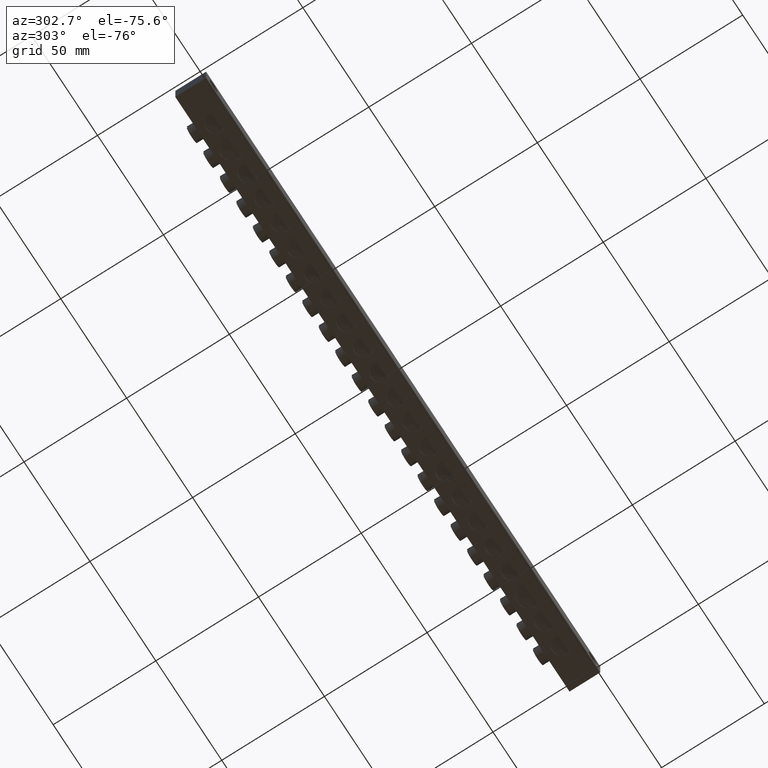
[diagram: clean part render]
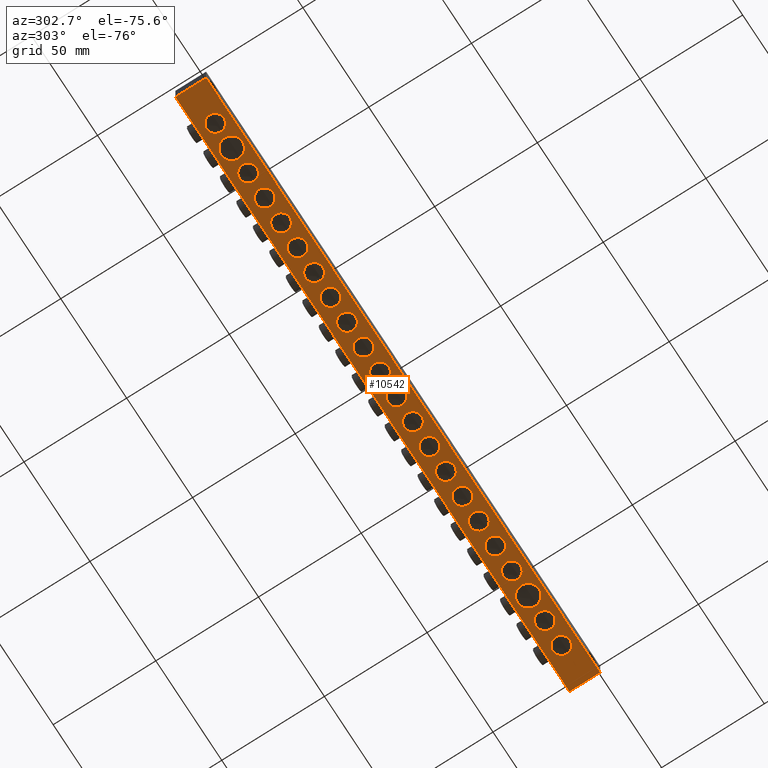
[diagram: same view with one face highlighted and labeled with its STEP entity id]
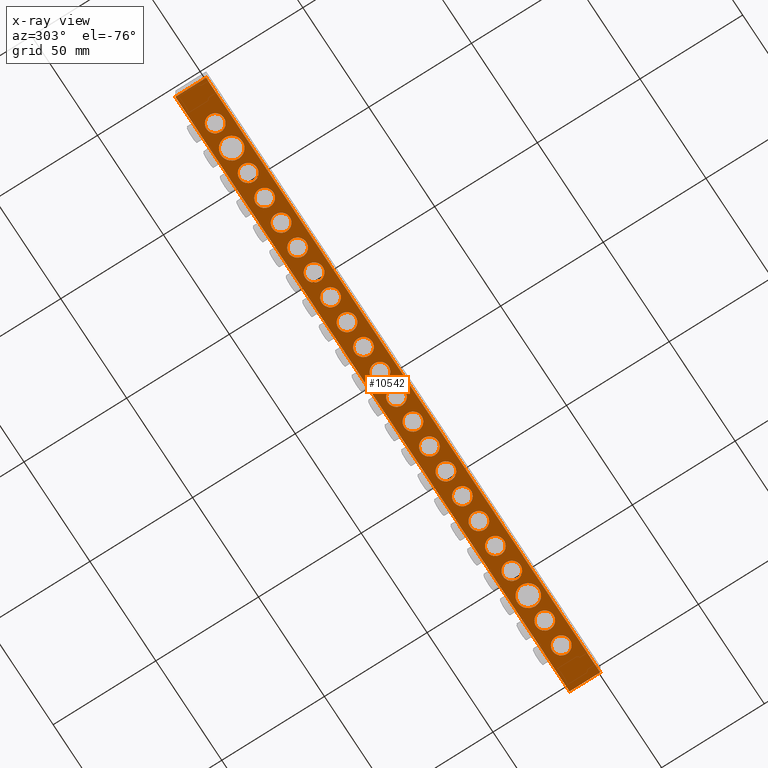
[diagram: x-ray of the same camera — body ghosted, the highlighted face saturated]
A machine part, auxiliary view. The second image highlights one B-rep face of the part: STEP entity #10542.
The next image is the same camera in x-ray: the body ghosted, the highlighted face saturated — about 0% of this face is hidden behind the body in this view.
In plain terms, the highlighted planar face has unit normal (0, 0, 1).
Its self-contained STEP definition (entity closure, byte-faithful):
#300 = VERTEX_POINT ( 'NONE', #3171 ) ;
#301 = VERTEX_POINT ( 'NONE', #3174 ) ;
#313 = VERTEX_POINT ( 'NONE', #3173 ) ;
#316 = VERTEX_POINT ( 'NONE', #3166 ) ;
#319 = VERTEX_POINT ( 'NONE', #3162 ) ;
#320 = VERTEX_POINT ( 'NONE', #3189 ) ;
#322 = VERTEX_POINT ( 'NONE', #3182 ) ;
#323 = VERTEX_POINT ( 'NONE', #3201 ) ;
#336 = VERTEX_POINT ( 'NONE', #3202 ) ;
#344 = VERTEX_POINT ( 'NONE', #3156 ) ;
#345 = VERTEX_POINT ( 'NONE', #3199 ) ;
#359 = VERTEX_POINT ( 'NONE', #3251 ) ;
#362 = VERTEX_POINT ( 'NONE', #3258 ) ;
#363 = VERTEX_POINT ( 'NONE', #3252 ) ;
#370 = VERTEX_POINT ( 'NONE', #3218 ) ;
#373 = VERTEX_POINT ( 'NONE', #3221 ) ;
#374 = VERTEX_POINT ( 'NONE', #3242 ) ;
#377 = VERTEX_POINT ( 'NONE', #3232 ) ;
#381 = VERTEX_POINT ( 'NONE', #3266 ) ;
#386 = VERTEX_POINT ( 'NONE', #3228 ) ;
#388 = VERTEX_POINT ( 'NONE', #3230 ) ;
#392 = VERTEX_POINT ( 'NONE', #3246 ) ;
#407 = VERTEX_POINT ( 'NONE', #3268 ) ;
#416 = VERTEX_POINT ( 'NONE', #3273 ) ;
#420 = VERTEX_POINT ( 'NONE', #3302 ) ;
#761 = VERTEX_POINT ( 'NONE', #2900 ) ;
#762 = VERTEX_POINT ( 'NONE', #2903 ) ;
#1248 = ORIENTED_EDGE ( 'NONE', *, *, #7398, .F. ) ;
#1250 = ORIENTED_EDGE ( 'NONE', *, *, #8523, .F. ) ;
#1253 = ORIENTED_EDGE ( 'NONE', *, *, #8552, .F. ) ;
#1254 = ORIENTED_EDGE ( 'NONE', *, *, #7395, .F. ) ;
#1255 = ORIENTED_EDGE ( 'NONE', *, *, #8563, .F. ) ;
#1256 = ORIENTED_EDGE ( 'NONE', *, *, #3806, .F. ) ;
#1257 = ORIENTED_EDGE ( 'NONE', *, *, #8564, .F. ) ;
#1258 = ORIENTED_EDGE ( 'NONE', *, *, #3752, .F. ) ;
#1259 = ORIENTED_EDGE ( 'NONE', *, *, #12139, .T. ) ;
#1260 = ORIENTED_EDGE ( 'NONE', *, *, #8542, .F. ) ;
#1261 = ORIENTED_EDGE ( 'NONE', *, *, #8550, .F. ) ;
#1262 = ORIENTED_EDGE ( 'NONE', *, *, #7380, .F. ) ;
#1264 = ORIENTED_EDGE ( 'NONE', *, *, #7379, .F. ) ;
#1265 = ORIENTED_EDGE ( 'NONE', *, *, #3769, .F. ) ;
#1267 = ORIENTED_EDGE ( 'NONE', *, *, #8543, .F. ) ;
#1269 = ORIENTED_EDGE ( 'NONE', *, *, #3790, .F. ) ;
#1270 = ORIENTED_EDGE ( 'NONE', *, *, #3784, .F. ) ;
#1271 = ORIENTED_EDGE ( 'NONE', *, *, #3809, .F. ) ;
#1273 = ORIENTED_EDGE ( 'NONE', *, *, #12112, .T. ) ;
#1274 = ORIENTED_EDGE ( 'NONE', *, *, #3817, .F. ) ;
#1275 = ORIENTED_EDGE ( 'NONE', *, *, #12154, .F. ) ;
#1276 = ORIENTED_EDGE ( 'NONE', *, *, #8560, .F. ) ;
#1278 = ORIENTED_EDGE ( 'NONE', *, *, #3876, .F. ) ;
#1279 = ORIENTED_EDGE ( 'NONE', *, *, #3877, .F. ) ;
#1281 = ORIENTED_EDGE ( 'NONE', *, *, #7418, .F. ) ;
#1284 = ORIENTED_EDGE ( 'NONE', *, *, #8526, .F. ) ;
#1285 = ORIENTED_EDGE ( 'NONE', *, *, #3704, .F. ) ;
#1287 = ORIENTED_EDGE ( 'NONE', *, *, #8547, .F. ) ;
#1288 = ORIENTED_EDGE ( 'NONE', *, *, #3792, .F. ) ;
#1290 = ORIENTED_EDGE ( 'NONE', *, *, #8525, .F. ) ;
#1292 = ORIENTED_EDGE ( 'NONE', *, *, #3815, .F. ) ;
#1293 = ORIENTED_EDGE ( 'NONE', *, *, #3865, .F. ) ;
#1297 = ORIENTED_EDGE ( 'NONE', *, *, #12120, .T. ) ;
#1298 = ORIENTED_EDGE ( 'NONE', *, *, #3749, .F. ) ;
#1300 = ORIENTED_EDGE ( 'NONE', *, *, #3775, .F. ) ;
#1303 = ORIENTED_EDGE ( 'NONE', *, *, #3771, .F. ) ;
#1304 = ORIENTED_EDGE ( 'NONE', *, *, #3777, .F. ) ;
#1306 = ORIENTED_EDGE ( 'NONE', *, *, #3828, .F. ) ;
#1308 = ORIENTED_EDGE ( 'NONE', *, *, #8558, .F. ) ;
#1310 = ORIENTED_EDGE ( 'NONE', *, *, #3831, .F. ) ;
#1311 = ORIENTED_EDGE ( 'NONE', *, *, #8554, .F. ) ;
#1319 = ORIENTED_EDGE ( 'NONE', *, *, #8556, .F. ) ;
#1320 = ORIENTED_EDGE ( 'NONE', *, *, #3781, .F. ) ;
#1332 = ORIENTED_EDGE ( 'NONE', *, *, #7437, .F. ) ;
#1355 = ORIENTED_EDGE ( 'NONE', *, *, #3843, .F. ) ;
#1358 = ORIENTED_EDGE ( 'NONE', *, *, #3780, .F. ) ;
#1359 = ORIENTED_EDGE ( 'NONE', *, *, #7406, .F. ) ;
#1365 = ORIENTED_EDGE ( 'NONE', *, *, #8535, .F. ) ;
#1466 = AXIS2_PLACEMENT_3D ( 'NONE', #11263, #11285, #11280 ) ;
#1473 = AXIS2_PLACEMENT_3D ( 'NONE', #11261, #11257, #11266 ) ;
#1487 = CIRCLE ( 'NONE', #1473, 5.249999999999997300 ) ;
#1489 = CIRCLE ( 'NONE', #1466, 4.249999999999976000 ) ;
#1496 = CIRCLE ( 'NONE', #1500, 4.250000000000003600 ) ;
#1500 = AXIS2_PLACEMENT_3D ( 'NONE', #11322, #11325, #11326 ) ;
#1504 = CIRCLE ( 'NONE', #1505, 4.250000000000003600 ) ;
#1505 = AXIS2_PLACEMENT_3D ( 'NONE', #11296, #11319, #11289 ) ;
#1521 = CIRCLE ( 'NONE', #1539, 4.250000000000032000 ) ;
#1527 = AXIS2_PLACEMENT_3D ( 'NONE', #11419, #11436, #11427 ) ;
#1533 = CIRCLE ( 'NONE', #1556, 4.250000000000032000 ) ;
#1539 = AXIS2_PLACEMENT_3D ( 'NONE', #11412, #11383, #11382 ) ;
#1556 = AXIS2_PLACEMENT_3D ( 'NONE', #11344, #11330, #11337 ) ;
#1558 = CIRCLE ( 'NONE', #1527, 5.249999999999976900 ) ;
#1625 = CIRCLE ( 'NONE', #1655, 4.250000000000003600 ) ;
#1626 = CIRCLE ( 'NONE', #1645, 4.250000000000017800 ) ;
#1642 = CIRCLE ( 'NONE', #1654, 4.250000000000003600 ) ;
#1645 = AXIS2_PLACEMENT_3D ( 'NONE', #9310, #9302, #9316 ) ;
#1654 = AXIS2_PLACEMENT_3D ( 'NONE', #9334, #9306, #9309 ) ;
#1655 = AXIS2_PLACEMENT_3D ( 'NONE', #9330, #9304, #9303 ) ;
#1673 = AXIS2_PLACEMENT_3D ( 'NONE', #9399, #9395, #9406 ) ;
#1680 = CIRCLE ( 'NONE', #1684, 4.250000000000003600 ) ;
#1681 = CIRCLE ( 'NONE', #1683, 4.250000000000003600 ) ;
#1683 = AXIS2_PLACEMENT_3D ( 'NONE', #9337, #9358, #9352 ) ;
#1684 = AXIS2_PLACEMENT_3D ( 'NONE', #9429, #9447, #9434 ) ;
#1685 = AXIS2_PLACEMENT_3D ( 'NONE', #9397, #9377, #9383 ) ;
#1687 = CIRCLE ( 'NONE', #1673, 4.250000000000003600 ) ;
#1688 = CIRCLE ( 'NONE', #1702, 4.250000000000003600 ) ;
#1696 = AXIS2_PLACEMENT_3D ( 'NONE', #9444, #9423, #9457 ) ;
#1697 = AXIS2_PLACEMENT_3D ( 'NONE', #9386, #9405, #9392 ) ;
#1699 = CIRCLE ( 'NONE', #1723, 4.250000000000003600 ) ;
#1700 = AXIS2_PLACEMENT_3D ( 'NONE', #9379, #9393, #9413 ) ;
#1702 = AXIS2_PLACEMENT_3D ( 'NONE', #9410, #9411, #9396 ) ;
#1705 = CIRCLE ( 'NONE', #1685, 4.250000000000003600 ) ;
#1714 = CIRCLE ( 'NONE', #1696, 4.250000000000003600 ) ;
#1715 = CIRCLE ( 'NONE', #1700, 4.250000000000003600 ) ;
#1719 = CIRCLE ( 'NONE', #1746, 4.250000000000003600 ) ;
#1723 = AXIS2_PLACEMENT_3D ( 'NONE', #9403, #9416, #9402 ) ;
#1725 = CIRCLE ( 'NONE', #1728, 4.250000000000003600 ) ;
#1728 = AXIS2_PLACEMENT_3D ( 'NONE', #9428, #9435, #9442 ) ;
#1731 = CIRCLE ( 'NONE', #1697, 4.250000000000003600 ) ;
#1743 = AXIS2_PLACEMENT_3D ( 'NONE', #9618, #9642, #9636 ) ;
#1746 = AXIS2_PLACEMENT_3D ( 'NONE', #9443, #9427, #9430 ) ;
#1764 = CIRCLE ( 'NONE', #1776, 4.250000000000003600 ) ;
#1776 = AXIS2_PLACEMENT_3D ( 'NONE', #9431, #9432, #9420 ) ;
#1799 = VECTOR ( 'NONE', #8683, 1000.000000000000000 ) ;
#1814 = VECTOR ( 'NONE', #8713, 1000.000000000000000 ) ;
#1862 = VECTOR ( 'NONE', #8828, 1000.000000000000000 ) ;
#1912 = VECTOR ( 'NONE', #8771, 1000.000000000000000 ) ;
#2490 = VERTEX_POINT ( 'NONE', #14005 ) ;
#2900 = CARTESIAN_POINT ( 'NONE',  ( 30.00000000000000700, 7.299999999999999800, -10.00000000000000200 ) ) ;
#2903 = CARTESIAN_POINT ( 'NONE',  ( 130.9999999999999400, 7.299999999999967000, -10.00000000000000200 ) ) ;
#3156 = CARTESIAN_POINT ( 'NONE',  ( 289.5000000000000600, 7.299999999999998900, -10.00000000000000200 ) ) ;
#3162 = CARTESIAN_POINT ( 'NONE',  ( 252.0000000000000000, 7.300000000000002500, -10.00000000000000200 ) ) ;
#3166 = CARTESIAN_POINT ( 'NONE',  ( 214.4999999999999700, 7.299999999999992700, -10.00000000000000200 ) ) ;
#3171 = CARTESIAN_POINT ( 'NONE',  ( 40.50000000000000000, 7.299999999999998900, -10.00000000000000200 ) ) ;
#3173 = CARTESIAN_POINT ( 'NONE',  ( 180.9999999999999700, 7.299999999999984700, -10.00000000000000200 ) ) ;
#3174 = CARTESIAN_POINT ( 'NONE',  ( 281.0000000000000000, 7.299999999999999800, -10.00000000000000200 ) ) ;
#3182 = CARTESIAN_POINT ( 'NONE',  ( 201.9999999999999400, 7.299999999999990900, -10.00000000000000200 ) ) ;
#3189 = CARTESIAN_POINT ( 'NONE',  ( 243.4999999999999400, 7.300000000000003400, -10.00000000000000200 ) ) ;
#3199 = CARTESIAN_POINT ( 'NONE',  ( 177.0000000000000300, 7.299999999999979400, -10.00000000000000200 ) ) ;
#3201 = CARTESIAN_POINT ( 'NONE',  ( 205.9999999999999700, 7.299999999999993600, -10.00000000000000200 ) ) ;
#3202 = CARTESIAN_POINT ( 'NONE',  ( 268.5000000000000000, 7.299999999999999800, -10.00000000000000200 ) ) ;
#3218 = CARTESIAN_POINT ( 'NONE',  ( 151.9999999999999400, 7.299999999999970500, -10.00000000000000200 ) ) ;
#3221 = CARTESIAN_POINT ( 'NONE',  ( 164.4999999999999400, 7.299999999999975000, -10.00000000000000200 ) ) ;
#3228 = CARTESIAN_POINT ( 'NONE',  ( 231.0000000000000000, 7.300000000000002500, -10.00000000000000200 ) ) ;
#3230 = CARTESIAN_POINT ( 'NONE',  ( 218.4999999999999400, 7.299999999999998000, -10.00000000000000200 ) ) ;
#3232 = CARTESIAN_POINT ( 'NONE',  ( 265.4999999999999400, 7.299999999999998900, -10.00000000000000200 ) ) ;
#3242 = CARTESIAN_POINT ( 'NONE',  ( 168.5000000000000000, 7.299999999999980300, -10.00000000000000200 ) ) ;
#3246 = CARTESIAN_POINT ( 'NONE',  ( 193.4999999999999400, 7.299999999999991800, -10.00000000000000200 ) ) ;
#3251 = CARTESIAN_POINT ( 'NONE',  ( 276.9999999999999400, 7.299999999999998900, -10.00000000000000200 ) ) ;
#3252 = CARTESIAN_POINT ( 'NONE',  ( 226.9999999999999400, 7.299999999999997200, -10.00000000000000200 ) ) ;
#3258 = CARTESIAN_POINT ( 'NONE',  ( 143.4999999999999400, 7.299999999999971400, -10.00000000000000200 ) ) ;
#3266 = CARTESIAN_POINT ( 'NONE',  ( 255.0000000000000000, 7.299999999999999800, -10.00000000000000200 ) ) ;
#3268 = CARTESIAN_POINT ( 'NONE',  ( 155.9999999999999400, 7.299999999999975800, -10.00000000000000200 ) ) ;
#3273 = CARTESIAN_POINT ( 'NONE',  ( 189.4999999999999700, 7.299999999999983800, -10.00000000000000200 ) ) ;
#3302 = CARTESIAN_POINT ( 'NONE',  ( 239.5000000000000300, 7.300000000000001600, -10.00000000000000200 ) ) ;
#3704 = EDGE_CURVE ( 'NONE', #12646, #12665, #7280, .T. ) ;
#3749 = EDGE_CURVE ( 'NONE', #12685, #12643, #6338, .T. ) ;
#3752 = EDGE_CURVE ( 'NONE', #12651, #12642, #6383, .T. ) ;
#3769 = EDGE_CURVE ( 'NONE', #373, #407, #6427, .T. ) ;
#3771 = EDGE_CURVE ( 'NONE', #12658, #12577, #6439, .T. ) ;
#3775 = EDGE_CURVE ( 'NONE', #319, #320, #6425, .T. ) ;
#3777 = EDGE_CURVE ( 'NONE', #363, #388, #6394, .T. ) ;
#3780 = EDGE_CURVE ( 'NONE', #359, #336, #6406, .T. ) ;
#3781 = EDGE_CURVE ( 'NONE', #316, #323, #6422, .T. ) ;
#3784 = EDGE_CURVE ( 'NONE', #416, #313, #6442, .T. ) ;
#3790 = EDGE_CURVE ( 'NONE', #345, #374, #6429, .T. ) ;
#3792 = EDGE_CURVE ( 'NONE', #12675, #12662, #6393, .T. ) ;
#3806 = EDGE_CURVE ( 'NONE', #322, #392, #6459, .T. ) ;
#3809 = EDGE_CURVE ( 'NONE', #12653, #12676, #6504, .T. ) ;
#3815 = EDGE_CURVE ( 'NONE', #370, #362, #6474, .T. ) ;
#3817 = EDGE_CURVE ( 'NONE', #12644, #12655, #6486, .T. ) ;
#3828 = EDGE_CURVE ( 'NONE', #420, #386, #6458, .T. ) ;
#3831 = EDGE_CURVE ( 'NONE', #12656, #762, #6491, .T. ) ;
#3843 = EDGE_CURVE ( 'NONE', #300, #761, #6502, .T. ) ;
#3865 = EDGE_CURVE ( 'NONE', #344, #301, #6520, .T. ) ;
#3876 = EDGE_CURVE ( 'NONE', #377, #381, #6578, .T. ) ;
#3877 = EDGE_CURVE ( 'NONE', #13342, #2490, #6556, .T. ) ;
#5395 = DIRECTION ( 'NONE',  ( -0.0000000000000000000, -0.0000000000000000000, -1.000000000000000000 ) ) ;
#5400 = CARTESIAN_POINT ( 'NONE',  ( 197.7499999999999400, 7.299999999999990900, -10.00000000000000200 ) ) ;
#5408 = DIRECTION ( 'NONE',  ( 1.000000000000000000, 0.0000000000000000000, 0.0000000000000000000 ) ) ;
#5415 = CARTESIAN_POINT ( 'NONE',  ( 97.74999999999994300, 7.299999999999954500, -10.00000000000000200 ) ) ;
#5416 = DIRECTION ( 'NONE',  ( -0.0000000000000000000, -0.0000000000000000000, -1.000000000000000000 ) ) ;
#5424 = DIRECTION ( 'NONE',  ( 1.000000000000000000, 0.0000000000000000000, 0.0000000000000000000 ) ) ;
#5425 = CARTESIAN_POINT ( 'NONE',  ( 147.7499999999999400, 7.299999999999970500, -10.00000000000000200 ) ) ;
#5428 = DIRECTION ( 'NONE',  ( -0.0000000000000000000, -0.0000000000000000000, -1.000000000000000000 ) ) ;
#5432 = DIRECTION ( 'NONE',  ( 1.000000000000000000, 0.0000000000000000000, 0.0000000000000000000 ) ) ;
#5434 = DIRECTION ( 'NONE',  ( -0.0000000000000000000, -0.0000000000000000000, -1.000000000000000000 ) ) ;
#5440 = DIRECTION ( 'NONE',  ( 1.000000000000000000, 0.0000000000000000000, 0.0000000000000000000 ) ) ;
#5444 = CARTESIAN_POINT ( 'NONE',  ( 110.2499999999999600, 7.299999999999957200, -10.00000000000000200 ) ) ;
#5456 = CARTESIAN_POINT ( 'NONE',  ( 235.2500000000000300, 7.300000000000001600, -10.00000000000000200 ) ) ;
#5461 = DIRECTION ( 'NONE',  ( -0.0000000000000000000, -0.0000000000000000000, -1.000000000000000000 ) ) ;
#5467 = DIRECTION ( 'NONE',  ( 1.000000000000000000, 0.0000000000000000000, 0.0000000000000000000 ) ) ;
#5475 = DIRECTION ( 'NONE',  ( -0.0000000000000000000, -0.0000000000000000000, -1.000000000000000000 ) ) ;
#5493 = CARTESIAN_POINT ( 'NONE',  ( 135.2499999999999400, 7.299999999999966100, -10.00000000000000200 ) ) ;
#5498 = DIRECTION ( 'NONE',  ( 1.000000000000000000, 0.0000000000000000000, 0.0000000000000000000 ) ) ;
#5502 = CARTESIAN_POINT ( 'NONE',  ( 35.25000000000000000, 7.299999999999998900, -10.00000000000000200 ) ) ;
#5507 = DIRECTION ( 'NONE',  ( -0.0000000000000000000, -0.0000000000000000000, -1.000000000000000000 ) ) ;
#5508 = DIRECTION ( 'NONE',  ( 1.000000000000000000, 0.0000000000000000000, 0.0000000000000000000 ) ) ;
#5571 = DIRECTION ( 'NONE',  ( 1.000000000000000000, 0.0000000000000000000, 0.0000000000000000000 ) ) ;
#5574 = CARTESIAN_POINT ( 'NONE',  ( 85.24999999999997200, 7.299999999999950100, -10.00000000000000200 ) ) ;
#5579 = CARTESIAN_POINT ( 'NONE',  ( 172.7500000000000300, 7.299999999999979400, -10.00000000000000200 ) ) ;
#5581 = DIRECTION ( 'NONE',  ( -0.0000000000000000000, -0.0000000000000000000, -1.000000000000000000 ) ) ;
#5587 = DIRECTION ( 'NONE',  ( 1.000000000000000000, 0.0000000000000000000, 0.0000000000000000000 ) ) ;
#5588 = DIRECTION ( 'NONE',  ( -0.0000000000000000000, -0.0000000000000000000, -1.000000000000000000 ) ) ;
#6338 = CIRCLE ( 'NONE', #6360, 4.250000000000003600 ) ;
#6360 = AXIS2_PLACEMENT_3D ( 'NONE', #10656, #10653, #10666 ) ;
#6362 = AXIS2_PLACEMENT_3D ( 'NONE', #10659, #10642, #10647 ) ;
#6383 = CIRCLE ( 'NONE', #6362, 4.250000000000003600 ) ;
#6389 = AXIS2_PLACEMENT_3D ( 'NONE', #10773, #10774, #10755 ) ;
#6393 = CIRCLE ( 'NONE', #6415, 4.250000000000003600 ) ;
#6394 = CIRCLE ( 'NONE', #6446, 4.250000000000003600 ) ;
#6403 = AXIS2_PLACEMENT_3D ( 'NONE', #10759, #10767, #10736 ) ;
#6406 = CIRCLE ( 'NONE', #6403, 4.249999999999976000 ) ;
#6413 = AXIS2_PLACEMENT_3D ( 'NONE', #10709, #10721, #10732 ) ;
#6415 = AXIS2_PLACEMENT_3D ( 'NONE', #5574, #5581, #5571 ) ;
#6417 = AXIS2_PLACEMENT_3D ( 'NONE', #10716, #10722, #10733 ) ;
#6422 = CIRCLE ( 'NONE', #6444, 4.250000000000003600 ) ;
#6425 = CIRCLE ( 'NONE', #6440, 4.250000000000032000 ) ;
#6427 = CIRCLE ( 'NONE', #6413, 4.250000000000003600 ) ;
#6429 = CIRCLE ( 'NONE', #6430, 4.250000000000003600 ) ;
#6430 = AXIS2_PLACEMENT_3D ( 'NONE', #5579, #5588, #5587 ) ;
#6439 = CIRCLE ( 'NONE', #6417, 4.250000000000017800 ) ;
#6440 = AXIS2_PLACEMENT_3D ( 'NONE', #10728, #10754, #10749 ) ;
#6442 = CIRCLE ( 'NONE', #6389, 4.250000000000003600 ) ;
#6444 = AXIS2_PLACEMENT_3D ( 'NONE', #10771, #10748, #10772 ) ;
#6446 = AXIS2_PLACEMENT_3D ( 'NONE', #10746, #10761, #10751 ) ;
#6453 = AXIS2_PLACEMENT_3D ( 'NONE', #5502, #5507, #5508 ) ;
#6456 = AXIS2_PLACEMENT_3D ( 'NONE', #5415, #5416, #5440 ) ;
#6458 = CIRCLE ( 'NONE', #6490, 4.250000000000003600 ) ;
#6459 = CIRCLE ( 'NONE', #6473, 4.250000000000003600 ) ;
#6473 = AXIS2_PLACEMENT_3D ( 'NONE', #5400, #5395, #5408 ) ;
#6474 = CIRCLE ( 'NONE', #6512, 4.250000000000003600 ) ;
#6485 = AXIS2_PLACEMENT_3D ( 'NONE', #5493, #5475, #5498 ) ;
#6486 = CIRCLE ( 'NONE', #6487, 4.250000000000003600 ) ;
#6487 = AXIS2_PLACEMENT_3D ( 'NONE', #5444, #5434, #5424 ) ;
#6490 = AXIS2_PLACEMENT_3D ( 'NONE', #5456, #5461, #5467 ) ;
#6491 = CIRCLE ( 'NONE', #6485, 4.250000000000003600 ) ;
#6502 = CIRCLE ( 'NONE', #6453, 5.249999999999997300 ) ;
#6504 = CIRCLE ( 'NONE', #6456, 4.250000000000003600 ) ;
#6512 = AXIS2_PLACEMENT_3D ( 'NONE', #5425, #5428, #5432 ) ;
#6517 = AXIS2_PLACEMENT_3D ( 'NONE', #14642, #14635, #14636 ) ;
#6520 = CIRCLE ( 'NONE', #6541, 4.250000000000032000 ) ;
#6541 = AXIS2_PLACEMENT_3D ( 'NONE', #14714, #14717, #14739 ) ;
#6556 = CIRCLE ( 'NONE', #6564, 4.250000000000003600 ) ;
#6564 = AXIS2_PLACEMENT_3D ( 'NONE', #14651, #14647, #14638 ) ;
#6578 = CIRCLE ( 'NONE', #6517, 5.249999999999976900 ) ;
#7274 = AXIS2_PLACEMENT_3D ( 'NONE', #11983, #11960, #11978 ) ;
#7280 = CIRCLE ( 'NONE', #7274, 4.250000000000003600 ) ;
#7379 = EDGE_CURVE ( 'NONE', #761, #300, #1487, .T. ) ;
#7380 = EDGE_CURVE ( 'NONE', #336, #359, #1489, .T. ) ;
#7395 = EDGE_CURVE ( 'NONE', #386, #420, #1496, .T. ) ;
#7398 = EDGE_CURVE ( 'NONE', #2490, #13342, #1504, .T. ) ;
#7406 = EDGE_CURVE ( 'NONE', #320, #319, #1533, .T. ) ;
#7418 = EDGE_CURVE ( 'NONE', #301, #344, #1521, .T. ) ;
#7437 = EDGE_CURVE ( 'NONE', #381, #377, #1558, .T. ) ;
#8523 = EDGE_CURVE ( 'NONE', #388, #363, #1642, .T. ) ;
#8525 = EDGE_CURVE ( 'NONE', #12642, #12651, #1625, .T. ) ;
#8526 = EDGE_CURVE ( 'NONE', #12577, #12658, #1626, .T. ) ;
#8535 = EDGE_CURVE ( 'NONE', #362, #370, #1681, .T. ) ;
#8542 = EDGE_CURVE ( 'NONE', #762, #12656, #1687, .T. ) ;
#8543 = EDGE_CURVE ( 'NONE', #407, #373, #1699, .T. ) ;
#8547 = EDGE_CURVE ( 'NONE', #12643, #12685, #1705, .T. ) ;
#8550 = EDGE_CURVE ( 'NONE', #374, #345, #1731, .T. ) ;
#8552 = EDGE_CURVE ( 'NONE', #323, #316, #1715, .T. ) ;
#8554 = EDGE_CURVE ( 'NONE', #12676, #12653, #1688, .T. ) ;
#8556 = EDGE_CURVE ( 'NONE', #313, #416, #1725, .T. ) ;
#8558 = EDGE_CURVE ( 'NONE', #12655, #12644, #1714, .T. ) ;
#8560 = EDGE_CURVE ( 'NONE', #12665, #12646, #1680, .T. ) ;
#8563 = EDGE_CURVE ( 'NONE', #392, #322, #1719, .T. ) ;
#8564 = EDGE_CURVE ( 'NONE', #12662, #12675, #1764, .T. ) ;
#8682 = CARTESIAN_POINT ( 'NONE',  ( 0.0000000000000000000, 15.00000000000000000, -10.00000000000000000 ) ) ;
#8683 = DIRECTION ( 'NONE',  ( 1.000000000000000000, 0.0000000000000000000, 0.0000000000000000000 ) ) ;
#8692 = LINE ( 'NONE', #8682, #1799 ) ;
#8713 = DIRECTION ( 'NONE',  ( -0.0000000000000000000, -1.000000000000000000, 0.0000000000000000000 ) ) ;
#8715 = LINE ( 'NONE', #8717, #1814 ) ;
#8717 = CARTESIAN_POINT ( 'NONE',  ( 303.5000000000000000, 15.00000000000000000, -10.00000000000000000 ) ) ;
#8766 = CARTESIAN_POINT ( 'NONE',  ( 4.500000000000001800, 15.00000000000000000, -10.00000000000000000 ) ) ;
#8771 = DIRECTION ( 'NONE',  ( 0.0000000000000000000, 1.000000000000000000, 0.0000000000000000000 ) ) ;
#8776 = LINE ( 'NONE', #8766, #1912 ) ;
#8809 = CARTESIAN_POINT ( 'NONE',  ( 0.0000000000000000000, 0.0000000000000000000, -10.00000000000000000 ) ) ;
#8825 = LINE ( 'NONE', #8809, #1862 ) ;
#8828 = DIRECTION ( 'NONE',  ( 1.000000000000000000, 0.0000000000000000000, 0.0000000000000000000 ) ) ;
#8895 = CARTESIAN_POINT ( 'NONE',  ( 68.49999999999994300, 7.299999999999944800, -10.00000000000000200 ) ) ;
#8896 = CARTESIAN_POINT ( 'NONE',  ( 43.49999999999995700, 7.299999999999935900, -10.00000000000000200 ) ) ;
#8898 = CARTESIAN_POINT ( 'NONE',  ( 114.4999999999999600, 7.299999999999957200, -10.00000000000000200 ) ) ;
#8905 = CARTESIAN_POINT ( 'NONE',  ( 64.49999999999994300, 7.299999999999939400, -10.00000000000000200 ) ) ;
#8910 = CARTESIAN_POINT ( 'NONE',  ( 118.4999999999999400, 7.299999999999962500, -10.00000000000000200 ) ) ;
#8958 = CARTESIAN_POINT ( 'NONE',  ( 303.5000000000000000, 0.0000000000000000000, -10.00000000000000000 ) ) ;
#8973 = CARTESIAN_POINT ( 'NONE',  ( 126.9999999999999700, 7.299999999999961600, -10.00000000000000200 ) ) ;
#8976 = CARTESIAN_POINT ( 'NONE',  ( 93.49999999999994300, 7.299999999999954500, -10.00000000000000200 ) ) ;
#8984 = CARTESIAN_POINT ( 'NONE',  ( 89.49999999999997200, 7.299999999999950100, -10.00000000000000200 ) ) ;
#8986 = CARTESIAN_POINT ( 'NONE',  ( 105.9999999999999600, 7.299999999999958100, -10.00000000000000200 ) ) ;
#8988 = CARTESIAN_POINT ( 'NONE',  ( 80.99999999999995700, 7.299999999999951000, -10.00000000000000200 ) ) ;
#8995 = CARTESIAN_POINT ( 'NONE',  ( 101.9999999999999600, 7.299999999999954500, -10.00000000000000200 ) ) ;
#9005 = CARTESIAN_POINT ( 'NONE',  ( 76.99999999999995700, 7.299999999999943900, -10.00000000000000200 ) ) ;
#9006 = CARTESIAN_POINT ( 'NONE',  ( 4.500000000000001800, 0.0000000000000000000, -10.00000000000000000 ) ) ;
#9008 = CARTESIAN_POINT ( 'NONE',  ( 55.99999999999993600, 7.299999999999940300, -10.00000000000000200 ) ) ;
#9013 = CARTESIAN_POINT ( 'NONE',  ( 139.4999999999999400, 7.299999999999966100, -10.00000000000000200 ) ) ;
#9017 = CARTESIAN_POINT ( 'NONE',  ( 51.99999999999996400, 7.299999999999935000, -10.00000000000000200 ) ) ;
#9028 = CARTESIAN_POINT ( 'NONE',  ( 27.00000000000000400, 7.299999999999998900, -10.00000000000000200 ) ) ;
#9040 = CARTESIAN_POINT ( 'NONE',  ( 4.500000000000001800, 15.00000000000000000, -10.00000000000000000 ) ) ;
#9066 = CARTESIAN_POINT ( 'NONE',  ( 303.5000000000000000, 15.00000000000000000, -10.00000000000000000 ) ) ;
#9302 = DIRECTION ( 'NONE',  ( -0.0000000000000000000, -0.0000000000000000000, -1.000000000000000000 ) ) ;
#9303 = DIRECTION ( 'NONE',  ( 1.000000000000000000, 0.0000000000000000000, 0.0000000000000000000 ) ) ;
#9304 = DIRECTION ( 'NONE',  ( -0.0000000000000000000, -0.0000000000000000000, -1.000000000000000000 ) ) ;
#9306 = DIRECTION ( 'NONE',  ( -0.0000000000000000000, -0.0000000000000000000, -1.000000000000000000 ) ) ;
#9309 = DIRECTION ( 'NONE',  ( 1.000000000000000000, 0.0000000000000000000, 0.0000000000000000000 ) ) ;
#9310 = CARTESIAN_POINT ( 'NONE',  ( 122.7499999999999600, 7.299999999999961600, -10.00000000000000200 ) ) ;
#9316 = DIRECTION ( 'NONE',  ( 1.000000000000000000, 0.0000000000000000000, 0.0000000000000000000 ) ) ;
#9330 = CARTESIAN_POINT ( 'NONE',  ( 47.74999999999995700, 7.299999999999935000, -10.00000000000000200 ) ) ;
#9334 = CARTESIAN_POINT ( 'NONE',  ( 222.7499999999999400, 7.299999999999997200, -10.00000000000000200 ) ) ;
#9337 = CARTESIAN_POINT ( 'NONE',  ( 147.7499999999999400, 7.299999999999970500, -10.00000000000000200 ) ) ;
#9352 = DIRECTION ( 'NONE',  ( 1.000000000000000000, 0.0000000000000000000, 0.0000000000000000000 ) ) ;
#9358 = DIRECTION ( 'NONE',  ( -0.0000000000000000000, -0.0000000000000000000, -1.000000000000000000 ) ) ;
#9377 = DIRECTION ( 'NONE',  ( -0.0000000000000000000, -0.0000000000000000000, -1.000000000000000000 ) ) ;
#9379 = CARTESIAN_POINT ( 'NONE',  ( 210.2499999999999700, 7.299999999999992700, -10.00000000000000200 ) ) ;
#9383 = DIRECTION ( 'NONE',  ( 1.000000000000000000, 0.0000000000000000000, 0.0000000000000000000 ) ) ;
#9386 = CARTESIAN_POINT ( 'NONE',  ( 172.7500000000000300, 7.299999999999979400, -10.00000000000000200 ) ) ;
#9392 = DIRECTION ( 'NONE',  ( 1.000000000000000000, 0.0000000000000000000, 0.0000000000000000000 ) ) ;
#9393 = DIRECTION ( 'NONE',  ( -0.0000000000000000000, -0.0000000000000000000, -1.000000000000000000 ) ) ;
#9395 = DIRECTION ( 'NONE',  ( -0.0000000000000000000, -0.0000000000000000000, -1.000000000000000000 ) ) ;
#9396 = DIRECTION ( 'NONE',  ( 1.000000000000000000, 0.0000000000000000000, 0.0000000000000000000 ) ) ;
#9397 = CARTESIAN_POINT ( 'NONE',  ( 72.74999999999995700, 7.299999999999943900, -10.00000000000000200 ) ) ;
#9399 = CARTESIAN_POINT ( 'NONE',  ( 135.2499999999999400, 7.299999999999966100, -10.00000000000000200 ) ) ;
#9402 = DIRECTION ( 'NONE',  ( 1.000000000000000000, 0.0000000000000000000, 0.0000000000000000000 ) ) ;
#9403 = CARTESIAN_POINT ( 'NONE',  ( 160.2499999999999400, 7.299999999999975000, -10.00000000000000200 ) ) ;
#9405 = DIRECTION ( 'NONE',  ( -0.0000000000000000000, -0.0000000000000000000, -1.000000000000000000 ) ) ;
#9406 = DIRECTION ( 'NONE',  ( 1.000000000000000000, 0.0000000000000000000, 0.0000000000000000000 ) ) ;
#9410 = CARTESIAN_POINT ( 'NONE',  ( 97.74999999999994300, 7.299999999999954500, -10.00000000000000200 ) ) ;
#9411 = DIRECTION ( 'NONE',  ( -0.0000000000000000000, -0.0000000000000000000, -1.000000000000000000 ) ) ;
#9413 = DIRECTION ( 'NONE',  ( 1.000000000000000000, 0.0000000000000000000, 0.0000000000000000000 ) ) ;
#9416 = DIRECTION ( 'NONE',  ( -0.0000000000000000000, -0.0000000000000000000, -1.000000000000000000 ) ) ;
#9420 = DIRECTION ( 'NONE',  ( 1.000000000000000000, 0.0000000000000000000, 0.0000000000000000000 ) ) ;
#9423 = DIRECTION ( 'NONE',  ( -0.0000000000000000000, -0.0000000000000000000, -1.000000000000000000 ) ) ;
#9427 = DIRECTION ( 'NONE',  ( -0.0000000000000000000, -0.0000000000000000000, -1.000000000000000000 ) ) ;
#9428 = CARTESIAN_POINT ( 'NONE',  ( 185.2499999999999700, 7.299999999999983800, -10.00000000000000200 ) ) ;
#9429 = CARTESIAN_POINT ( 'NONE',  ( 60.24999999999994300, 7.299999999999939400, -10.00000000000000200 ) ) ;
#9430 = DIRECTION ( 'NONE',  ( 1.000000000000000000, 0.0000000000000000000, 0.0000000000000000000 ) ) ;
#9431 = CARTESIAN_POINT ( 'NONE',  ( 85.24999999999997200, 7.299999999999950100, -10.00000000000000200 ) ) ;
#9432 = DIRECTION ( 'NONE',  ( -0.0000000000000000000, -0.0000000000000000000, -1.000000000000000000 ) ) ;
#9434 = DIRECTION ( 'NONE',  ( 1.000000000000000000, 0.0000000000000000000, 0.0000000000000000000 ) ) ;
#9435 = DIRECTION ( 'NONE',  ( -0.0000000000000000000, -0.0000000000000000000, -1.000000000000000000 ) ) ;
#9442 = DIRECTION ( 'NONE',  ( 1.000000000000000000, 0.0000000000000000000, 0.0000000000000000000 ) ) ;
#9443 = CARTESIAN_POINT ( 'NONE',  ( 197.7499999999999400, 7.299999999999990900, -10.00000000000000200 ) ) ;
#9444 = CARTESIAN_POINT ( 'NONE',  ( 110.2499999999999600, 7.299999999999957200, -10.00000000000000200 ) ) ;
#9447 = DIRECTION ( 'NONE',  ( -0.0000000000000000000, -0.0000000000000000000, -1.000000000000000000 ) ) ;
#9457 = DIRECTION ( 'NONE',  ( 1.000000000000000000, 0.0000000000000000000, 0.0000000000000000000 ) ) ;
#9558 = FACE_BOUND ( 'NONE', #13064, .T. ) ;
#9561 = FACE_BOUND ( 'NONE', #13095, .T. ) ;
#9562 = FACE_BOUND ( 'NONE', #13107, .T. ) ;
#9573 = FACE_BOUND ( 'NONE', #13070, .T. ) ;
#9574 = FACE_BOUND ( 'NONE', #13164, .T. ) ;
#9575 = FACE_BOUND ( 'NONE', #13136, .T. ) ;
#9576 = FACE_BOUND ( 'NONE', #13104, .T. ) ;
#9580 = FACE_BOUND ( 'NONE', #13075, .T. ) ;
#9581 = FACE_BOUND ( 'NONE', #13091, .T. ) ;
#9598 = FACE_BOUND ( 'NONE', #13052, .T. ) ;
#9599 = FACE_BOUND ( 'NONE', #13084, .T. ) ;
#9603 = FACE_BOUND ( 'NONE', #13087, .T. ) ;
#9604 = FACE_BOUND ( 'NONE', #13066, .T. ) ;
#9605 = FACE_BOUND ( 'NONE', #13140, .T. ) ;
#9607 = FACE_BOUND ( 'NONE', #13083, .T. ) ;
#9609 = FACE_BOUND ( 'NONE', #13108, .T. ) ;
#9611 = FACE_BOUND ( 'NONE', #13102, .T. ) ;
#9612 = FACE_BOUND ( 'NONE', #13094, .T. ) ;
#9613 = FACE_BOUND ( 'NONE', #13081, .T. ) ;
#9614 = FACE_BOUND ( 'NONE', #13069, .T. ) ;
#9618 = CARTESIAN_POINT ( 'NONE',  ( 0.0000000000000000000, 15.00000000000000000, -10.00000000000000000 ) ) ;
#9623 = FACE_BOUND ( 'NONE', #13157, .T. ) ;
#9624 = PLANE ( 'NONE',  #1743 ) ;
#9632 = FACE_OUTER_BOUND ( 'NONE', #13170, .T. ) ;
#9634 = FACE_BOUND ( 'NONE', #13080, .T. ) ;
#9636 = DIRECTION ( 'NONE',  ( 1.000000000000000000, 0.0000000000000000000, -0.0000000000000000000 ) ) ;
#9642 = DIRECTION ( 'NONE',  ( 0.0000000000000000000, 0.0000000000000000000, 1.000000000000000000 ) ) ;
#10542 = ADVANCED_FACE ( 'NONE', ( #9558, #9574, #9573, #9603, #9575, #9605, #9609, #9598, #9599, #9613, #9611, #9576, #9614, #9580, #9604, #9561, #9612, #9562, #9581, #9607, #9623, #9634, #9632 ), #9624, .F. ) ;
#10642 = DIRECTION ( 'NONE',  ( -0.0000000000000000000, -0.0000000000000000000, -1.000000000000000000 ) ) ;
#10647 = DIRECTION ( 'NONE',  ( 1.000000000000000000, 0.0000000000000000000, 0.0000000000000000000 ) ) ;
#10653 = DIRECTION ( 'NONE',  ( -0.0000000000000000000, -0.0000000000000000000, -1.000000000000000000 ) ) ;
#10656 = CARTESIAN_POINT ( 'NONE',  ( 72.74999999999995700, 7.299999999999943900, -10.00000000000000200 ) ) ;
#10659 = CARTESIAN_POINT ( 'NONE',  ( 47.74999999999995700, 7.299999999999935000, -10.00000000000000200 ) ) ;
#10666 = DIRECTION ( 'NONE',  ( 1.000000000000000000, 0.0000000000000000000, 0.0000000000000000000 ) ) ;
#10709 = CARTESIAN_POINT ( 'NONE',  ( 160.2499999999999400, 7.299999999999975000, -10.00000000000000200 ) ) ;
#10716 = CARTESIAN_POINT ( 'NONE',  ( 122.7499999999999600, 7.299999999999961600, -10.00000000000000200 ) ) ;
#10721 = DIRECTION ( 'NONE',  ( -0.0000000000000000000, -0.0000000000000000000, -1.000000000000000000 ) ) ;
#10722 = DIRECTION ( 'NONE',  ( -0.0000000000000000000, -0.0000000000000000000, -1.000000000000000000 ) ) ;
#10728 = CARTESIAN_POINT ( 'NONE',  ( 247.7499999999999700, 7.300000000000002500, -10.00000000000000200 ) ) ;
#10732 = DIRECTION ( 'NONE',  ( 1.000000000000000000, 0.0000000000000000000, 0.0000000000000000000 ) ) ;
#10733 = DIRECTION ( 'NONE',  ( 1.000000000000000000, 0.0000000000000000000, 0.0000000000000000000 ) ) ;
#10736 = DIRECTION ( 'NONE',  ( 1.000000000000000000, 0.0000000000000000000, 0.0000000000000000000 ) ) ;
#10746 = CARTESIAN_POINT ( 'NONE',  ( 222.7499999999999400, 7.299999999999997200, -10.00000000000000200 ) ) ;
#10748 = DIRECTION ( 'NONE',  ( -0.0000000000000000000, -0.0000000000000000000, -1.000000000000000000 ) ) ;
#10749 = DIRECTION ( 'NONE',  ( 1.000000000000000000, 0.0000000000000000000, 0.0000000000000000000 ) ) ;
#10751 = DIRECTION ( 'NONE',  ( 1.000000000000000000, 0.0000000000000000000, 0.0000000000000000000 ) ) ;
#10754 = DIRECTION ( 'NONE',  ( -0.0000000000000000000, -0.0000000000000000000, -1.000000000000000000 ) ) ;
#10755 = DIRECTION ( 'NONE',  ( 1.000000000000000000, 0.0000000000000000000, 0.0000000000000000000 ) ) ;
#10759 = CARTESIAN_POINT ( 'NONE',  ( 272.7500000000000000, 7.299999999999998900, -10.00000000000000200 ) ) ;
#10761 = DIRECTION ( 'NONE',  ( -0.0000000000000000000, -0.0000000000000000000, -1.000000000000000000 ) ) ;
#10767 = DIRECTION ( 'NONE',  ( -0.0000000000000000000, -0.0000000000000000000, -1.000000000000000000 ) ) ;
#10771 = CARTESIAN_POINT ( 'NONE',  ( 210.2499999999999700, 7.299999999999992700, -10.00000000000000200 ) ) ;
#10772 = DIRECTION ( 'NONE',  ( 1.000000000000000000, 0.0000000000000000000, 0.0000000000000000000 ) ) ;
#10773 = CARTESIAN_POINT ( 'NONE',  ( 185.2499999999999700, 7.299999999999983800, -10.00000000000000200 ) ) ;
#10774 = DIRECTION ( 'NONE',  ( -0.0000000000000000000, -0.0000000000000000000, -1.000000000000000000 ) ) ;
#11257 = DIRECTION ( 'NONE',  ( -0.0000000000000000000, -0.0000000000000000000, -1.000000000000000000 ) ) ;
#11261 = CARTESIAN_POINT ( 'NONE',  ( 35.25000000000000000, 7.299999999999998900, -10.00000000000000200 ) ) ;
#11263 = CARTESIAN_POINT ( 'NONE',  ( 272.7500000000000000, 7.299999999999998900, -10.00000000000000200 ) ) ;
#11266 = DIRECTION ( 'NONE',  ( 1.000000000000000000, 0.0000000000000000000, 0.0000000000000000000 ) ) ;
#11280 = DIRECTION ( 'NONE',  ( 1.000000000000000000, 0.0000000000000000000, 0.0000000000000000000 ) ) ;
#11285 = DIRECTION ( 'NONE',  ( -0.0000000000000000000, -0.0000000000000000000, -1.000000000000000000 ) ) ;
#11289 = DIRECTION ( 'NONE',  ( 1.000000000000000000, 0.0000000000000000000, 0.0000000000000000000 ) ) ;
#11296 = CARTESIAN_POINT ( 'NONE',  ( 22.75000000000000000, 7.299999999999998900, -10.00000000000000200 ) ) ;
#11319 = DIRECTION ( 'NONE',  ( -0.0000000000000000000, -0.0000000000000000000, -1.000000000000000000 ) ) ;
#11322 = CARTESIAN_POINT ( 'NONE',  ( 235.2500000000000300, 7.300000000000001600, -10.00000000000000200 ) ) ;
#11325 = DIRECTION ( 'NONE',  ( -0.0000000000000000000, -0.0000000000000000000, -1.000000000000000000 ) ) ;
#11326 = DIRECTION ( 'NONE',  ( 1.000000000000000000, 0.0000000000000000000, 0.0000000000000000000 ) ) ;
#11330 = DIRECTION ( 'NONE',  ( -0.0000000000000000000, -0.0000000000000000000, -1.000000000000000000 ) ) ;
#11337 = DIRECTION ( 'NONE',  ( 1.000000000000000000, 0.0000000000000000000, 0.0000000000000000000 ) ) ;
#11344 = CARTESIAN_POINT ( 'NONE',  ( 247.7499999999999700, 7.300000000000002500, -10.00000000000000200 ) ) ;
#11382 = DIRECTION ( 'NONE',  ( 1.000000000000000000, 0.0000000000000000000, 0.0000000000000000000 ) ) ;
#11383 = DIRECTION ( 'NONE',  ( -0.0000000000000000000, -0.0000000000000000000, -1.000000000000000000 ) ) ;
#11412 = CARTESIAN_POINT ( 'NONE',  ( 285.2500000000000000, 7.299999999999998900, -10.00000000000000200 ) ) ;
#11419 = CARTESIAN_POINT ( 'NONE',  ( 260.2500000000000000, 7.299999999999998900, -10.00000000000000200 ) ) ;
#11427 = DIRECTION ( 'NONE',  ( 1.000000000000000000, 0.0000000000000000000, 0.0000000000000000000 ) ) ;
#11436 = DIRECTION ( 'NONE',  ( -0.0000000000000000000, -0.0000000000000000000, -1.000000000000000000 ) ) ;
#11960 = DIRECTION ( 'NONE',  ( -0.0000000000000000000, -0.0000000000000000000, -1.000000000000000000 ) ) ;
#11978 = DIRECTION ( 'NONE',  ( 1.000000000000000000, 0.0000000000000000000, 0.0000000000000000000 ) ) ;
#11983 = CARTESIAN_POINT ( 'NONE',  ( 60.24999999999994300, 7.299999999999939400, -10.00000000000000200 ) ) ;
#12112 = EDGE_CURVE ( 'NONE', #13255, #13258, #8692, .T. ) ;
#12120 = EDGE_CURVE ( 'NONE', #13258, #13232, #8715, .T. ) ;
#12139 = EDGE_CURVE ( 'NONE', #13230, #13255, #8776, .T. ) ;
#12154 = EDGE_CURVE ( 'NONE', #13230, #13232, #8825, .T. ) ;
#12577 = VERTEX_POINT ( 'NONE', #8910 ) ;
#12642 = VERTEX_POINT ( 'NONE', #8896 ) ;
#12643 = VERTEX_POINT ( 'NONE', #8895 ) ;
#12644 = VERTEX_POINT ( 'NONE', #8898 ) ;
#12646 = VERTEX_POINT ( 'NONE', #8905 ) ;
#12651 = VERTEX_POINT ( 'NONE', #9017 ) ;
#12653 = VERTEX_POINT ( 'NONE', #8995 ) ;
#12655 = VERTEX_POINT ( 'NONE', #8986 ) ;
#12656 = VERTEX_POINT ( 'NONE', #9013 ) ;
#12658 = VERTEX_POINT ( 'NONE', #8973 ) ;
#12662 = VERTEX_POINT ( 'NONE', #8988 ) ;
#12665 = VERTEX_POINT ( 'NONE', #9008 ) ;
#12675 = VERTEX_POINT ( 'NONE', #8984 ) ;
#12676 = VERTEX_POINT ( 'NONE', #8976 ) ;
#12685 = VERTEX_POINT ( 'NONE', #9005 ) ;
#13052 = EDGE_LOOP ( 'NONE', ( #1310, #1260 ) ) ;
#13064 = EDGE_LOOP ( 'NONE', ( #1258, #1290 ) ) ;
#13066 = EDGE_LOOP ( 'NONE', ( #1304, #1250 ) ) ;
#13069 = EDGE_LOOP ( 'NONE', ( #1256, #1255 ) ) ;
#13070 = EDGE_LOOP ( 'NONE', ( #1298, #1287 ) ) ;
#13075 = EDGE_LOOP ( 'NONE', ( #1320, #1253 ) ) ;
#13080 = EDGE_LOOP ( 'NONE', ( #1279, #1248 ) ) ;
#13081 = EDGE_LOOP ( 'NONE', ( #1265, #1267 ) ) ;
#13083 = EDGE_LOOP ( 'NONE', ( #1293, #1281 ) ) ;
#13084 = EDGE_LOOP ( 'NONE', ( #1292, #1365 ) ) ;
#13087 = EDGE_LOOP ( 'NONE', ( #1288, #1257 ) ) ;
#13091 = EDGE_LOOP ( 'NONE', ( #1358, #1262 ) ) ;
#13094 = EDGE_LOOP ( 'NONE', ( #1306, #1254 ) ) ;
#13095 = EDGE_LOOP ( 'NONE', ( #1300, #1359 ) ) ;
#13102 = EDGE_LOOP ( 'NONE', ( #1269, #1261 ) ) ;
#13104 = EDGE_LOOP ( 'NONE', ( #1270, #1319 ) ) ;
#13107 = EDGE_LOOP ( 'NONE', ( #1278, #1332 ) ) ;
#13108 = EDGE_LOOP ( 'NONE', ( #1303, #1284 ) ) ;
#13136 = EDGE_LOOP ( 'NONE', ( #1271, #1311 ) ) ;
#13140 = EDGE_LOOP ( 'NONE', ( #1274, #1308 ) ) ;
#13157 = EDGE_LOOP ( 'NONE', ( #1355, #1264 ) ) ;
#13164 = EDGE_LOOP ( 'NONE', ( #1285, #1276 ) ) ;
#13170 = EDGE_LOOP ( 'NONE', ( #1273, #1297, #1275, #1259 ) ) ;
#13230 = VERTEX_POINT ( 'NONE', #9006 ) ;
#13232 = VERTEX_POINT ( 'NONE', #8958 ) ;
#13255 = VERTEX_POINT ( 'NONE', #9040 ) ;
#13258 = VERTEX_POINT ( 'NONE', #9066 ) ;
#13342 = VERTEX_POINT ( 'NONE', #9028 ) ;
#14005 = CARTESIAN_POINT ( 'NONE',  ( 18.49999999999999600, 7.299999999999999800, -10.00000000000000200 ) ) ;
#14635 = DIRECTION ( 'NONE',  ( -0.0000000000000000000, -0.0000000000000000000, -1.000000000000000000 ) ) ;
#14636 = DIRECTION ( 'NONE',  ( 1.000000000000000000, 0.0000000000000000000, 0.0000000000000000000 ) ) ;
#14638 = DIRECTION ( 'NONE',  ( 1.000000000000000000, 0.0000000000000000000, 0.0000000000000000000 ) ) ;
#14642 = CARTESIAN_POINT ( 'NONE',  ( 260.2500000000000000, 7.299999999999998900, -10.00000000000000200 ) ) ;
#14647 = DIRECTION ( 'NONE',  ( -0.0000000000000000000, -0.0000000000000000000, -1.000000000000000000 ) ) ;
#14651 = CARTESIAN_POINT ( 'NONE',  ( 22.75000000000000000, 7.299999999999998900, -10.00000000000000200 ) ) ;
#14714 = CARTESIAN_POINT ( 'NONE',  ( 285.2500000000000000, 7.299999999999998900, -10.00000000000000200 ) ) ;
#14717 = DIRECTION ( 'NONE',  ( -0.0000000000000000000, -0.0000000000000000000, -1.000000000000000000 ) ) ;
#14739 = DIRECTION ( 'NONE',  ( 1.000000000000000000, 0.0000000000000000000, 0.0000000000000000000 ) ) ;